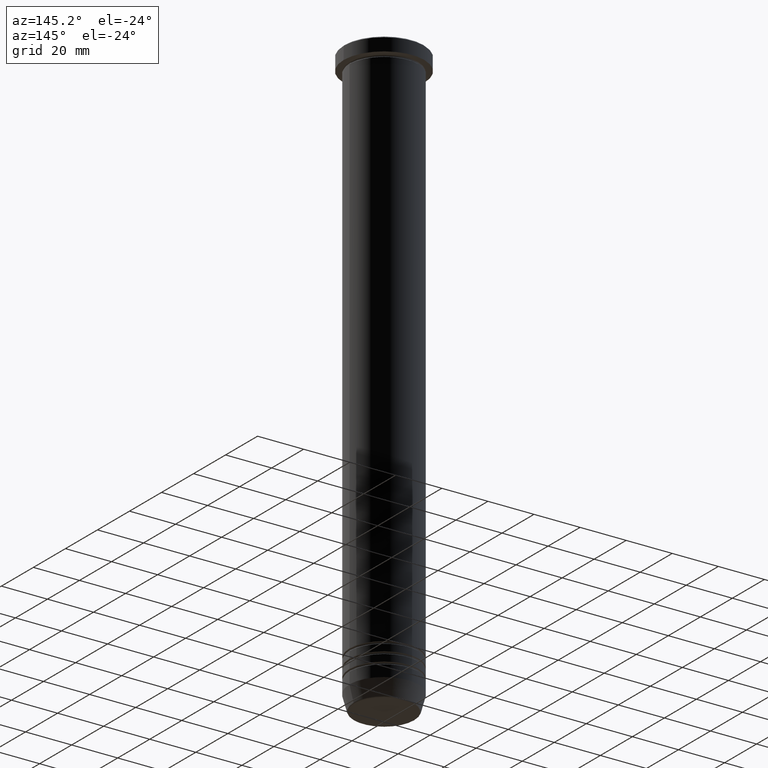
[diagram: clean part render]
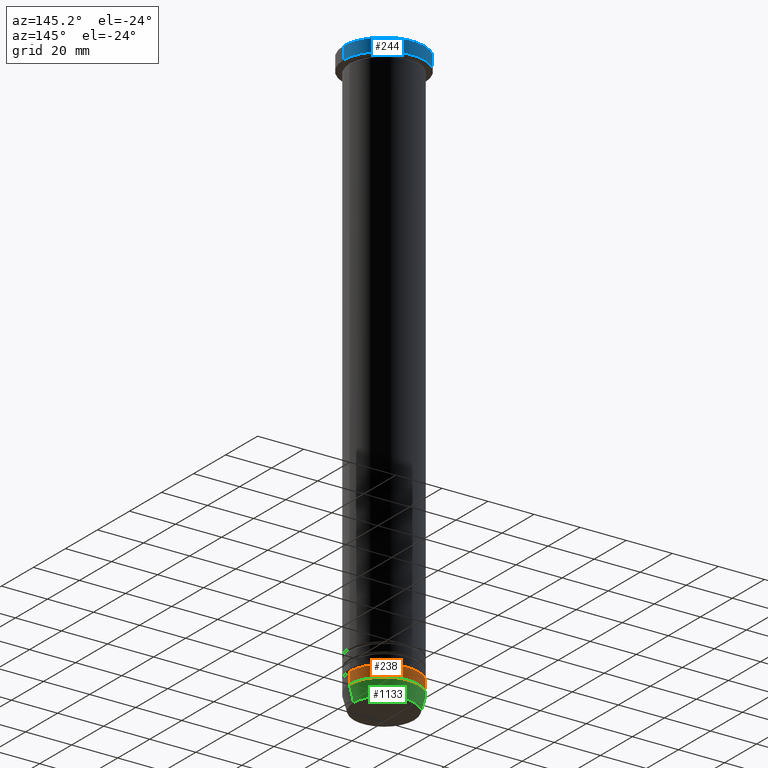
[diagram: same view with three faces highlighted in distinct colors, each labeled with its STEP entity id]
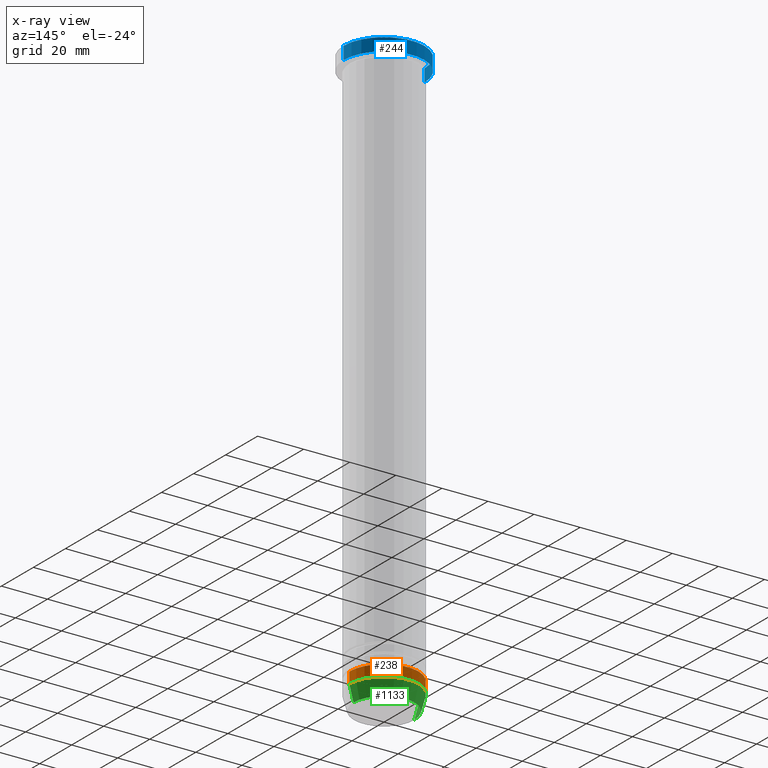
[diagram: x-ray of the same camera — body ghosted, the three highlighted faces saturated]
A machine part, auxiliary view with three faces highlighted in distinct colors.
The next image is the same camera in x-ray (body ghosted, the three faces saturated) — at least one of them is partly hidden behind the body in this view.
Their STEP definitions:

[orange] entity #238 — the highlighted cylindrical surface (partial cylindrical patch) has radius 15 mm, axis along (-0, -0, 1).
#76 = DIRECTION ( 'NONE',  ( -0.000000000000000000, -0.000000000000000000, 1.000000000000000000 ) ) ;
#152 = CIRCLE ( 'NONE', #859, 14.99999999999999822 ) ;
#159 = CYLINDRICAL_SURFACE ( 'NONE', #660, 14.99999999999999822 ) ;
#167 = DIRECTION ( 'NONE',  ( 1.000000000000000000, 0.000000000000000000, 0.000000000000000000 ) ) ;
#199 = CARTESIAN_POINT ( 'NONE',  ( 14.99999999999999822, 0.000000000000000000, -244.0000000000000000 ) ) ;
#238 = ADVANCED_FACE ( 'NONE', ( #339 ), #159, .T. ) ;
#255 = ORIENTED_EDGE ( 'NONE', *, *, #409, .T. ) ;
#259 = DIRECTION ( 'NONE',  ( 1.000000000000000000, 0.000000000000000000, 0.000000000000000000 ) ) ;
#293 = EDGE_LOOP ( 'NONE', ( #427, #255, #816, #1031 ) ) ;
#302 = EDGE_CURVE ( 'NONE', #546, #479, #953, .T. ) ;
#328 = AXIS2_PLACEMENT_3D ( 'NONE', #373, #453, #259 ) ;
#333 = DIRECTION ( 'NONE',  ( -0.000000000000000000, -0.000000000000000000, 1.000000000000000000 ) ) ;
#339 = FACE_OUTER_BOUND ( 'NONE', #293, .T. ) ;
#373 = CARTESIAN_POINT ( 'NONE',  ( 0.000000000000000000, 0.000000000000000000, -249.0000000000000000 ) ) ;
#409 = EDGE_CURVE ( 'NONE', #1012, #766, #442, .T. ) ;
#427 = ORIENTED_EDGE ( 'NONE', *, *, #755, .T. ) ;
#432 = CARTESIAN_POINT ( 'NONE',  ( 0.000000000000000000, 0.000000000000000000, 0.000000000000000000 ) ) ;
#442 = LINE ( 'NONE', #881, #818 ) ;
#453 = DIRECTION ( 'NONE',  ( -0.000000000000000000, -0.000000000000000000, 1.000000000000000000 ) ) ;
#479 = VERTEX_POINT ( 'NONE', #199 ) ;
#545 = DIRECTION ( 'NONE',  ( -0.000000000000000000, -0.000000000000000000, 1.000000000000000000 ) ) ;
#546 = VERTEX_POINT ( 'NONE', #558 ) ;
#558 = CARTESIAN_POINT ( 'NONE',  ( 14.99999999999999822, 0.000000000000000000, -249.0000000000000000 ) ) ;
#623 = CARTESIAN_POINT ( 'NONE',  ( -14.99999999999999822, 1.836970198721029589E-15, -249.0000000000000000 ) ) ;
#639 = CARTESIAN_POINT ( 'NONE',  ( -14.99999999999999822, 1.836970198721029589E-15, -244.0000000000000000 ) ) ;
#660 = AXIS2_PLACEMENT_3D ( 'NONE', #432, #858, #872 ) ;
#755 = EDGE_CURVE ( 'NONE', #546, #1012, #876, .T. ) ;
#766 = VERTEX_POINT ( 'NONE', #639 ) ;
#800 = EDGE_CURVE ( 'NONE', #479, #766, #152, .T. ) ;
#816 = ORIENTED_EDGE ( 'NONE', *, *, #800, .F. ) ;
#818 = VECTOR ( 'NONE', #545, 1000.000000000000000 ) ;
#858 = DIRECTION ( 'NONE',  ( -0.000000000000000000, -0.000000000000000000, 1.000000000000000000 ) ) ;
#859 = AXIS2_PLACEMENT_3D ( 'NONE', #871, #76, #167 ) ;
#868 = CARTESIAN_POINT ( 'NONE',  ( 14.99999999999999822, 0.000000000000000000, 0.000000000000000000 ) ) ;
#871 = CARTESIAN_POINT ( 'NONE',  ( 0.000000000000000000, 0.000000000000000000, -244.0000000000000000 ) ) ;
#872 = DIRECTION ( 'NONE',  ( 1.000000000000000000, 0.000000000000000000, 0.000000000000000000 ) ) ;
#876 = CIRCLE ( 'NONE', #328, 14.99999999999999822 ) ;
#881 = CARTESIAN_POINT ( 'NONE',  ( -14.99999999999999822, 1.836970198721029589E-15, 0.000000000000000000 ) ) ;
#953 = LINE ( 'NONE', #868, #1059 ) ;
#1012 = VERTEX_POINT ( 'NONE', #623 ) ;
#1031 = ORIENTED_EDGE ( 'NONE', *, *, #302, .F. ) ;
#1059 = VECTOR ( 'NONE', #333, 1000.000000000000000 ) ;

[blue] entity #244 — the highlighted cylindrical surface (partial cylindrical patch) has radius 17.5 mm, axis along (-0, -0, 1).
#65 = CARTESIAN_POINT ( 'NONE',  ( 17.50000000000000000, 0.000000000000000000, -5.999999999999999112 ) ) ;
#105 = VERTEX_POINT ( 'NONE', #752 ) ;
#124 = EDGE_CURVE ( 'NONE', #251, #202, #390, .T. ) ;
#139 = CARTESIAN_POINT ( 'NONE',  ( 17.50000000000000000, 0.000000000000000000, -0.5000000000000073275 ) ) ;
#149 = AXIS2_PLACEMENT_3D ( 'NONE', #1041, #511, #249 ) ;
#157 = CARTESIAN_POINT ( 'NONE',  ( 0.000000000000000000, 0.000000000000000000, -5.999999999999999112 ) ) ;
#178 = CARTESIAN_POINT ( 'NONE',  ( 0.000000000000000000, 0.000000000000000000, -0.5000000000000073275 ) ) ;
#190 = ORIENTED_EDGE ( 'NONE', *, *, #124, .F. ) ;
#202 = VERTEX_POINT ( 'NONE', #139 ) ;
#226 = CIRCLE ( 'NONE', #363, 17.50000000000000000 ) ;
#244 = ADVANCED_FACE ( 'NONE', ( #1032 ), #1148, .T. ) ;
#247 = CIRCLE ( 'NONE', #841, 17.50000000000000000 ) ;
#249 = DIRECTION ( 'NONE',  ( 1.000000000000000000, 0.000000000000000000, 0.000000000000000000 ) ) ;
#251 = VERTEX_POINT ( 'NONE', #65 ) ;
#262 = ORIENTED_EDGE ( 'NONE', *, *, #700, .T. ) ;
#329 = EDGE_LOOP ( 'NONE', ( #262, #894, #866, #190 ) ) ;
#363 = AXIS2_PLACEMENT_3D ( 'NONE', #178, #536, #437 ) ;
#390 = LINE ( 'NONE', #928, #946 ) ;
#437 = DIRECTION ( 'NONE',  ( 1.000000000000000000, 0.000000000000000000, 0.000000000000000000 ) ) ;
#511 = DIRECTION ( 'NONE',  ( -0.000000000000000000, -0.000000000000000000, 1.000000000000000000 ) ) ;
#536 = DIRECTION ( 'NONE',  ( 0.000000000000000000, 0.000000000000000000, -1.000000000000000000 ) ) ;
#617 = LINE ( 'NONE', #887, #771 ) ;
#700 = EDGE_CURVE ( 'NONE', #251, #1102, #247, .T. ) ;
#727 = CARTESIAN_POINT ( 'NONE',  ( -17.50000000000000000, 2.143131898507868248E-15, -5.999999999999999112 ) ) ;
#752 = CARTESIAN_POINT ( 'NONE',  ( -17.50000000000000000, 2.143131898507868248E-15, -0.5000000000000073275 ) ) ;
#759 = DIRECTION ( 'NONE',  ( 1.000000000000000000, 0.000000000000000000, 0.000000000000000000 ) ) ;
#771 = VECTOR ( 'NONE', #798, 1000.000000000000000 ) ;
#798 = DIRECTION ( 'NONE',  ( -0.000000000000000000, -0.000000000000000000, 1.000000000000000000 ) ) ;
#810 = EDGE_CURVE ( 'NONE', #105, #202, #226, .T. ) ;
#824 = DIRECTION ( 'NONE',  ( -0.000000000000000000, -0.000000000000000000, 1.000000000000000000 ) ) ;
#841 = AXIS2_PLACEMENT_3D ( 'NONE', #157, #867, #759 ) ;
#866 = ORIENTED_EDGE ( 'NONE', *, *, #810, .T. ) ;
#867 = DIRECTION ( 'NONE',  ( -0.000000000000000000, -0.000000000000000000, 1.000000000000000000 ) ) ;
#887 = CARTESIAN_POINT ( 'NONE',  ( -17.50000000000000000, 2.143131898507868248E-15, 0.000000000000000000 ) ) ;
#894 = ORIENTED_EDGE ( 'NONE', *, *, #1034, .T. ) ;
#928 = CARTESIAN_POINT ( 'NONE',  ( 17.50000000000000000, 0.000000000000000000, 0.000000000000000000 ) ) ;
#946 = VECTOR ( 'NONE', #824, 1000.000000000000000 ) ;
#1032 = FACE_OUTER_BOUND ( 'NONE', #329, .T. ) ;
#1034 = EDGE_CURVE ( 'NONE', #1102, #105, #617, .T. ) ;
#1041 = CARTESIAN_POINT ( 'NONE',  ( 0.000000000000000000, 0.000000000000000000, 0.000000000000000000 ) ) ;
#1102 = VERTEX_POINT ( 'NONE', #727 ) ;
#1148 = CYLINDRICAL_SURFACE ( 'NONE', #149, 17.50000000000000000 ) ;

[green] entity #1133 — the highlighted conical surface has half-angle 15 deg.
#35 = VERTEX_POINT ( 'NONE', #616 ) ;
#113 = VECTOR ( 'NONE', #532, 999.9999999999998863 ) ;
#117 = LINE ( 'NONE', #220, #1063 ) ;
#142 = ORIENTED_EDGE ( 'NONE', *, *, #321, .F. ) ;
#200 = ORIENTED_EDGE ( 'NONE', *, *, #1127, .T. ) ;
#220 = CARTESIAN_POINT ( 'NONE',  ( -13.12435565298214435, 1.607270014129605371E-15, -256.0000000000000000 ) ) ;
#224 = DIRECTION ( 'NONE',  ( -0.2588190451025198513, 3.169619151431753232E-17, 0.9659258262890686453 ) ) ;
#242 = DIRECTION ( 'NONE',  ( -0.000000000000000000, -0.000000000000000000, 1.000000000000000000 ) ) ;
#259 = DIRECTION ( 'NONE',  ( 1.000000000000000000, 0.000000000000000000, 0.000000000000000000 ) ) ;
#272 = DIRECTION ( 'NONE',  ( -1.000000000000000000, 0.000000000000000000, 0.000000000000000000 ) ) ;
#321 = EDGE_CURVE ( 'NONE', #35, #546, #1036, .T. ) ;
#328 = AXIS2_PLACEMENT_3D ( 'NONE', #373, #453, #259 ) ;
#353 = VERTEX_POINT ( 'NONE', #724 ) ;
#357 = CARTESIAN_POINT ( 'NONE',  ( 0.000000000000000000, 0.000000000000000000, -255.6294095225512422 ) ) ;
#373 = CARTESIAN_POINT ( 'NONE',  ( 0.000000000000000000, 0.000000000000000000, -249.0000000000000000 ) ) ;
#416 = CARTESIAN_POINT ( 'NONE',  ( 0.000000000000000000, 0.000000000000000000, -256.0000000000000000 ) ) ;
#431 = AXIS2_PLACEMENT_3D ( 'NONE', #416, #242, #499 ) ;
#449 = CONICAL_SURFACE ( 'NONE', #431, 13.12435565298214435, 0.2617993877991484641 ) ;
#450 = EDGE_CURVE ( 'NONE', #35, #353, #803, .T. ) ;
#453 = DIRECTION ( 'NONE',  ( -0.000000000000000000, -0.000000000000000000, 1.000000000000000000 ) ) ;
#483 = ORIENTED_EDGE ( 'NONE', *, *, #450, .T. ) ;
#499 = DIRECTION ( 'NONE',  ( 1.000000000000000000, 0.000000000000000000, 0.000000000000000000 ) ) ;
#532 = DIRECTION ( 'NONE',  ( 0.2588190451025198513, 0.000000000000000000, 0.9659258262890686453 ) ) ;
#546 = VERTEX_POINT ( 'NONE', #558 ) ;
#558 = CARTESIAN_POINT ( 'NONE',  ( 14.99999999999999822, 0.000000000000000000, -249.0000000000000000 ) ) ;
#616 = CARTESIAN_POINT ( 'NONE',  ( 13.22365507213719660, 0.000000000000000000, -255.6294095225512422 ) ) ;
#623 = CARTESIAN_POINT ( 'NONE',  ( -14.99999999999999822, 1.836970198721029589E-15, -249.0000000000000000 ) ) ;
#670 = EDGE_LOOP ( 'NONE', ( #483, #200, #1014, #142 ) ) ;
#688 = FACE_OUTER_BOUND ( 'NONE', #670, .T. ) ;
#703 = CARTESIAN_POINT ( 'NONE',  ( 13.12435565298214435, 0.000000000000000000, -256.0000000000000000 ) ) ;
#710 = DIRECTION ( 'NONE',  ( -0.000000000000000000, -0.000000000000000000, 1.000000000000000000 ) ) ;
#724 = CARTESIAN_POINT ( 'NONE',  ( -13.22365507213719660, 1.728200442216588780E-15, -255.6294095225512422 ) ) ;
#755 = EDGE_CURVE ( 'NONE', #546, #1012, #876, .T. ) ;
#803 = CIRCLE ( 'NONE', #982, 13.22365507213719660 ) ;
#876 = CIRCLE ( 'NONE', #328, 14.99999999999999822 ) ;
#982 = AXIS2_PLACEMENT_3D ( 'NONE', #357, #710, #272 ) ;
#1012 = VERTEX_POINT ( 'NONE', #623 ) ;
#1014 = ORIENTED_EDGE ( 'NONE', *, *, #755, .F. ) ;
#1036 = LINE ( 'NONE', #703, #113 ) ;
#1063 = VECTOR ( 'NONE', #224, 999.9999999999998863 ) ;
#1127 = EDGE_CURVE ( 'NONE', #353, #1012, #117, .T. ) ;
#1133 = ADVANCED_FACE ( 'NONE', ( #688 ), #449, .T. ) ;